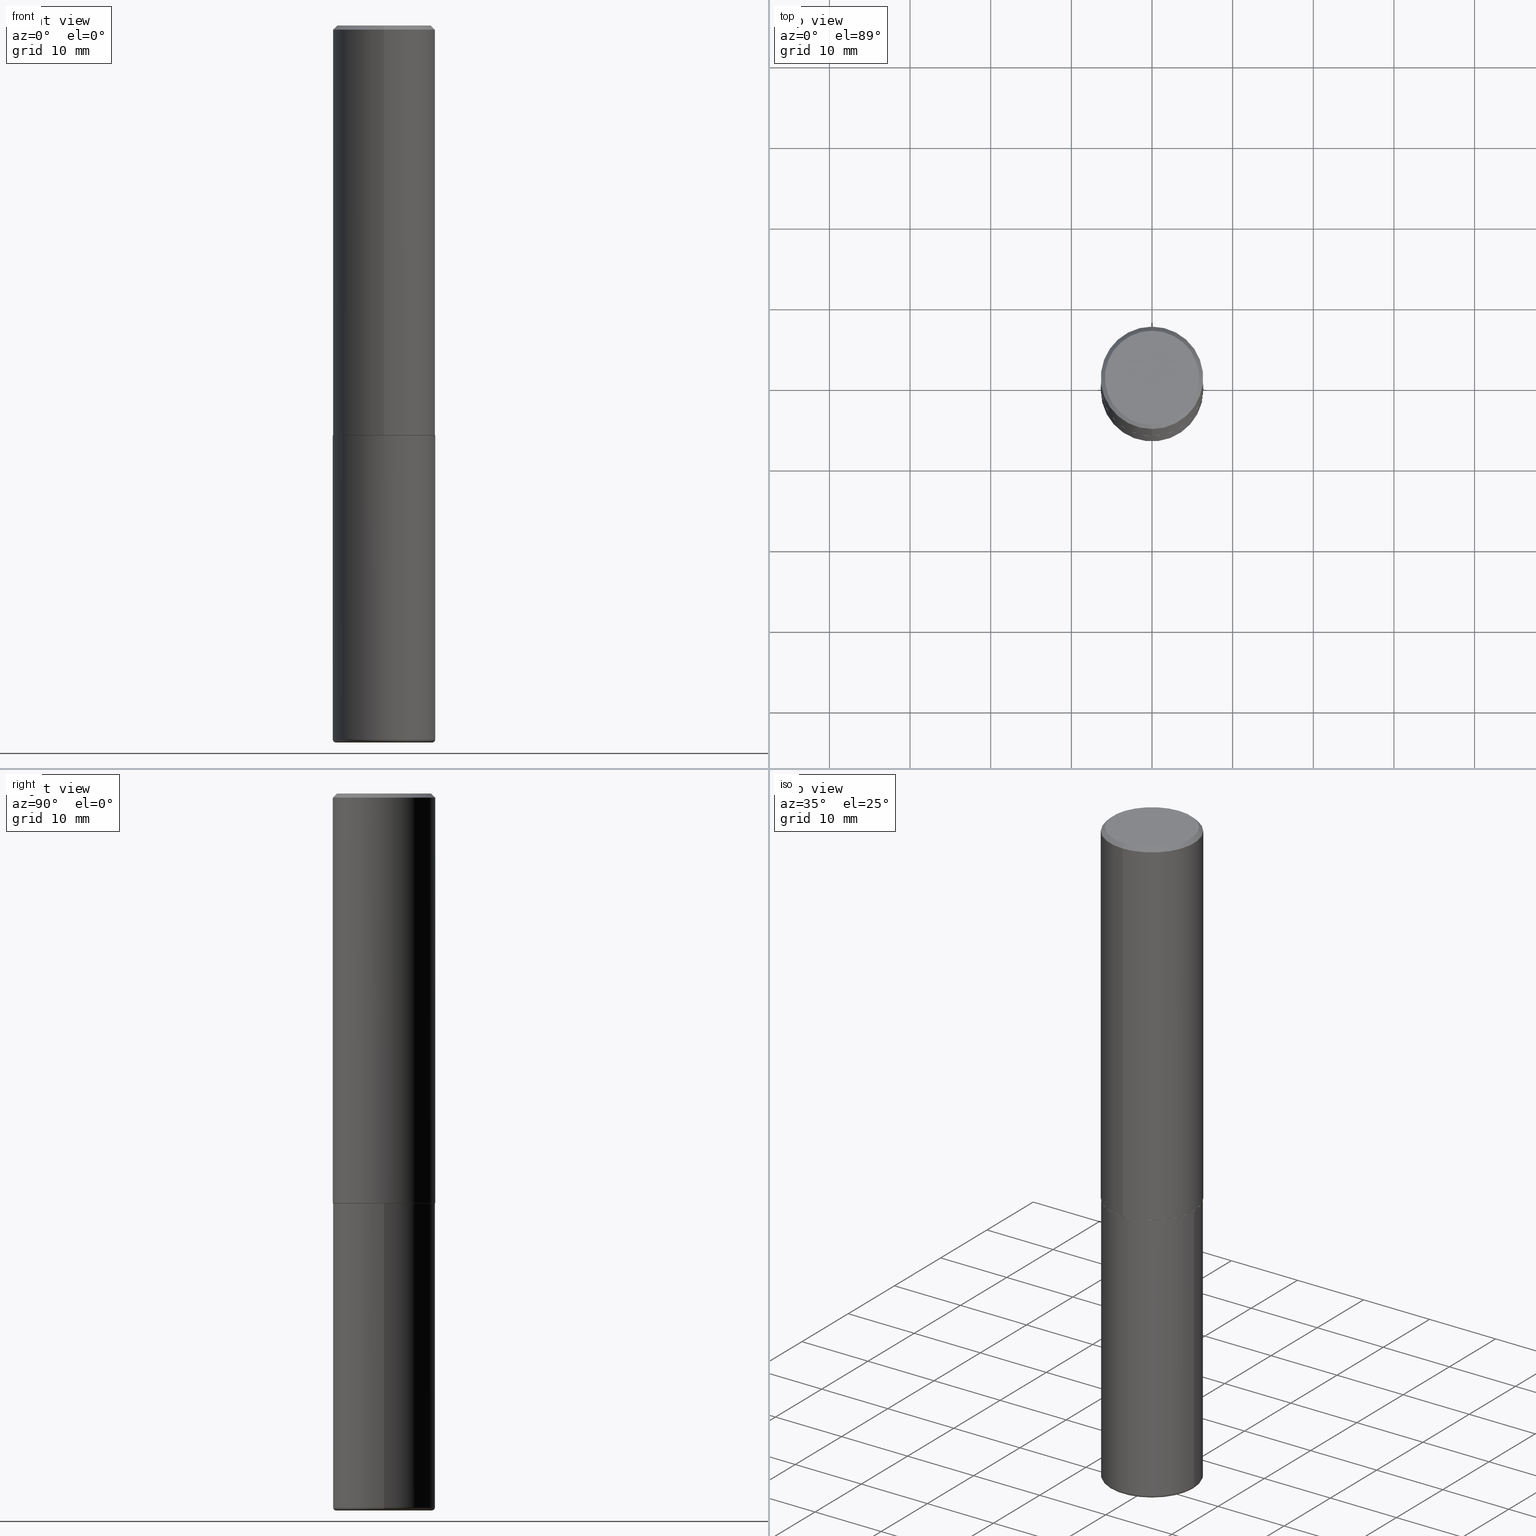
[diagram: canonical four-view strip — front | top / right | iso, engineering-drawing reading convention]
A machine part, canonical four-view strip (front | top / right | iso — engineering-drawing reading convention). The complete STEP part file that produces these views, byte-faithful:
ISO-10303-21;
HEADER;
FILE_DESCRIPTION (( 'STEP AP203' ),
    '1' );
FILE_NAME ('37528.STEP',
    '2024-03-02T03:24:48',
    ( '' ),
    ( '' ),
    'SwSTEP 2.0',
    'SolidWorks 2023',
    '' );
FILE_SCHEMA (( 'CONFIG_CONTROL_DESIGN' ));
ENDSEC;

DATA;
#1 = DIRECTION ( 'NONE',  ( -2.445737183286911680E-29, 3.491097007558327602E-15, 1.000000000000000000 ) ) ;
#2 = VECTOR ( 'NONE', #381, 39.37007874015748143 ) ;
#3 = AXIS2_PLACEMENT_3D ( 'NONE', #136, #205, #173 ) ;
#4 = EDGE_LOOP ( 'NONE', ( #153, #309 ) ) ;
#5 = CARTESIAN_POINT ( 'NONE',  ( 4.891474366573836672E-31, -6.982194015116674235E-17, -0.02000000000000005593 ) ) ;
#6 = DIRECTION ( 'NONE',  ( 2.445737183286911680E-29, -3.491097007558327602E-15, -1.000000000000000000 ) ) ;
#7 = EDGE_CURVE ( 'NONE', #29, #334, #150, .T. ) ;
#8 = EDGE_LOOP ( 'NONE', ( #158, #74 ) ) ;
#9 = DIRECTION ( 'NONE',  ( 7.105427357601001859E-15, 1.000000000000000000, -3.491481338843145583E-15 ) ) ;
#10 = CIRCLE ( 'NONE', #24, 0.2489999999999999991 ) ;
#11 = CYLINDRICAL_SURFACE ( 'NONE', #283, 0.2500000000000001110 ) ;
#12 = DIRECTION ( 'NONE',  ( 1.000000000000000000, -6.982962677686262766E-15, 0.000000000000000000 ) ) ;
#13 = CARTESIAN_POINT ( 'NONE',  ( 8.559140821647976968E-29, -1.222018468595100619E-14, -3.499999999999999112 ) ) ;
#14 = DIRECTION ( 'NONE',  ( -2.445737183286911680E-29, 3.491097007558327602E-15, 1.000000000000000000 ) ) ;
#15 = EDGE_CURVE ( 'NONE', #311, #332, #92, .T. ) ;
#16 = AXIS2_PLACEMENT_3D ( 'NONE', #292, #329, #361 ) ;
#17 = AXIS2_PLACEMENT_3D ( 'NONE', #108, #339, #306 ) ;
#18 = CIRCLE ( 'NONE', #78, 0.2500000000000000000 ) ;
#19 = PRODUCT ( '37528', '37528', '', ( #276 ) ) ;
#20 = CARTESIAN_POINT ( 'NONE',  ( 0.2499999999999999167, -1.391355313528992618E-14, -3.484999999999999432 ) ) ;
#21 = COORDINATED_UNIVERSAL_TIME_OFFSET ( 5, 0, .BEHIND. ) ;
#22 = DIRECTION ( 'NONE',  ( -1.000000000000000000, 6.982962677686265922E-15, -4.876176775795935793E-29 ) ) ;
#23 = VERTEX_POINT ( 'NONE', #216 ) ;
#24 = AXIS2_PLACEMENT_3D ( 'NONE', #267, #14, #75 ) ;
#25 = LOCAL_TIME ( 22, 24, 48.00000000000000000, #21 ) ;
#26 = ORIENTED_EDGE ( 'NONE', *, *, #241, .T. ) ;
#27 = CARTESIAN_POINT ( 'NONE',  ( 0.000000000000000000, 0.000000000000000000, 0.000000000000000000 ) ) ;
#28 = EDGE_CURVE ( 'NONE', #30, #246, #91, .T. ) ;
#29 = VERTEX_POINT ( 'NONE', #172 ) ;
#30 = VERTEX_POINT ( 'NONE', #344 ) ;
#31 = CIRCLE ( 'NONE', #43, 0.2500000000000000000 ) ;
#32 = LOCAL_TIME ( 22, 24, 48.00000000000000000, #60 ) ;
#33 = CARTESIAN_POINT ( 'NONE',  ( -1.745740669421519543E-15, -0.2500000000000072164, -1.998999999999998778 ) ) ;
#34 = APPROVAL_STATUS ( 'not_yet_approved' ) ;
#35 = DIRECTION ( 'NONE',  ( 2.438088387897960049E-29, -3.491481338843145188E-15, -1.000000000000000000 ) ) ;
#36 = DIMENSIONAL_EXPONENTS ( 1.000000000000000000, 0.000000000000000000, 0.000000000000000000, 0.000000000000000000, 0.000000000000000000, 0.000000000000000000, 0.000000000000000000 ) ;
#37 = EDGE_CURVE ( 'NONE', #334, #183, #335, .T. ) ;
#38 = CARTESIAN_POINT ( 'NONE',  ( 4.891474366573822799E-29, -6.982194015116654415E-15, -1.999999999999999778 ) ) ;
#39 = LINE ( 'NONE', #157, #188 ) ;
#40 = DIRECTION ( 'NONE',  ( -2.445468806185136597E-29, 3.491481338843145583E-15, 1.000000000000000000 ) ) ;
#41 = DIRECTION ( 'NONE',  ( -6.982962677686265922E-15, -1.000000000000000000, 3.491097007558327207E-15 ) ) ;
#42 = LINE ( 'NONE', #109, #347 ) ;
#43 = AXIS2_PLACEMENT_3D ( 'NONE', #5, #161, #70 ) ;
#44 = CARTESIAN_POINT ( 'NONE',  ( 1.675911042644703774E-15, 0.2299999999999999822, -8.286517828745257562E-16 ) ) ;
#45 = DIRECTION ( 'NONE',  ( -6.982962677686266711E-15, -1.000000000000000000, 3.491481338843145583E-15 ) ) ;
#46 = EDGE_CURVE ( 'NONE', #330, #311, #371, .T. ) ;
#47 = DIRECTION ( 'NONE',  ( -2.445468806185136597E-29, 3.491481338843145583E-15, 1.000000000000000000 ) ) ;
#48 = LINE ( 'NONE', #242, #410 ) ;
#49 = CC_DESIGN_DATE_AND_TIME_ASSIGNMENT ( #114, #115, ( #101 ) ) ;
#50 = AXIS2_PLACEMENT_3D ( 'NONE', #387, #93, #303 ) ;
#51 =( NAMED_UNIT ( * ) PLANE_ANGLE_UNIT ( ) SI_UNIT ( $, .RADIAN. ) );
#52 = EDGE_CURVE ( 'NONE', #89, #23, #31, .T. ) ;
#53 = DATE_AND_TIME ( #185, #85 ) ;
#54 = ORIENTED_EDGE ( 'NONE', *, *, #28, .F. ) ;
#55 = PERSON_AND_ORGANIZATION ( #355, #299 ) ;
#56 = ORIENTED_EDGE ( 'NONE', *, *, #167, .F. ) ;
#57 = AXIS2_PLACEMENT_3D ( 'NONE', #287, #129, #323 ) ;
#58 = PERSON_AND_ORGANIZATION ( #355, #299 ) ;
#59 = ORIENTED_EDGE ( 'NONE', *, *, #360, .T. ) ;
#60 = COORDINATED_UNIVERSAL_TIME_OFFSET ( 5, 0, .BEHIND. ) ;
#61 = ORIENTED_EDGE ( 'NONE', *, *, #293, .F. ) ;
#62 = CARTESIAN_POINT ( 'NONE',  ( 6.285415214839433991E-46, -8.971934677910720830E-32, -2.569947113611056727E-17 ) ) ;
#63 = AXIS2_PLACEMENT_3D ( 'NONE', #207, #45, #277 ) ;
#64 = AXIS2_PLACEMENT_3D ( 'NONE', #236, #263, #374 ) ;
#65 = CARTESIAN_POINT ( 'NONE',  ( 4.890937612370272633E-29, -6.982962677686290376E-15, -1.999999999999999778 ) ) ;
#66 = EDGE_CURVE ( 'NONE', #165, #29, #341, .T. ) ;
#67 = LINE ( 'NONE', #230, #274 ) ;
#68 = FACE_OUTER_BOUND ( 'NONE', #186, .T. ) ;
#69 = AXIS2_PLACEMENT_3D ( 'NONE', #102, #6, #133 ) ;
#70 = DIRECTION ( 'NONE',  ( -6.982962677686265922E-15, -1.000000000000000000, 3.483106191921935554E-15 ) ) ;
#71 = ORIENTED_EDGE ( 'NONE', *, *, #73, .T. ) ;
#72 = DIRECTION ( 'NONE',  ( -2.445737183286911680E-29, 3.491097007558327602E-15, 1.000000000000000000 ) ) ;
#73 = EDGE_CURVE ( 'NONE', #246, #178, #116, .T. ) ;
#74 = ORIENTED_EDGE ( 'NONE', *, *, #255, .F. ) ;
#75 = DIRECTION ( 'NONE',  ( -6.982962677686265133E-15, -1.000000000000000000, 3.291383124896702687E-15 ) ) ;
#76 = CARTESIAN_POINT ( 'NONE',  ( 0.000000000000000000, 0.000000000000000000, 0.000000000000000000 ) ) ;
#77 = CIRCLE ( 'NONE', #415, 0.2500000000000000000 ) ;
#78 = AXIS2_PLACEMENT_3D ( 'NONE', #296, #337, #400 ) ;
#79 = ORIENTED_EDGE ( 'NONE', *, *, #52, .T. ) ;
#80 = ADVANCED_FACE ( 'NONE', ( #155 ), #141, .T. ) ;
#81 = DIRECTION ( 'NONE',  ( -2.445737183286911680E-29, 3.491097007558327602E-15, 1.000000000000000000 ) ) ;
#82 = CARTESIAN_POINT ( 'NONE',  ( 8.522458789555200771E-29, -1.216781246586836108E-14, -3.484999999999999432 ) ) ;
#83 =( LENGTH_UNIT ( ) NAMED_UNIT ( * ) SI_UNIT ( $, .METRE. ) );
#84 = AXIS2_PLACEMENT_3D ( 'NONE', #223, #227, #353 ) ;
#85 = LOCAL_TIME ( 22, 24, 48.00000000000000000, #409 ) ;
#86 = APPROVAL_STATUS ( 'not_yet_approved' ) ;
#87 = CARTESIAN_POINT ( 'NONE',  ( 1.769251412042698169E-15, 0.2489999999999930325, -2.000000000000000444 ) ) ;
#88 = PERSON_AND_ORGANIZATION ( #355, #299 ) ;
#89 = VERTEX_POINT ( 'NONE', #359 ) ;
#90 =( CONVERSION_BASED_UNIT ( 'INCH', #377 ) LENGTH_UNIT ( ) NAMED_UNIT ( #36 ) );
#91 = LINE ( 'NONE', #414, #298 ) ;
#92 = CIRCLE ( 'NONE', #63, 0.01499999999999987454 ) ;
#93 = DIRECTION ( 'NONE',  ( -2.445737183286911680E-29, 3.491097007558327602E-15, 1.000000000000000000 ) ) ;
#94 = APPROVAL ( #86, 'UNSPECIFIED' ) ;
#95 = DESIGN_CONTEXT ( 'detailed design', #210, 'design' ) ;
#96 = LINE ( 'NONE', #254, #362 ) ;
#97 = DIRECTION ( 'NONE',  ( -6.982962677686265922E-15, -1.000000000000000000, 3.491097007558327207E-15 ) ) ;
#98 = AXIS2_PLACEMENT_3D ( 'NONE', #177, #375, #383 ) ;
#99 = CARTESIAN_POINT ( 'NONE',  ( 8.522458789555200771E-29, -1.216781246586836108E-14, -3.484999999999999432 ) ) ;
#100 = PRODUCT_RELATED_PRODUCT_CATEGORY ( 'detail', '', ( #19 ) ) ;
#101 = PRODUCT_DEFINITION ( 'UNKNOWN', '', #251, #95 ) ;
#102 = CARTESIAN_POINT ( 'NONE',  ( 4.891474366573836672E-31, -6.982194015116674235E-17, -0.02000000000000005593 ) ) ;
#103 = EDGE_CURVE ( 'NONE', #183, #334, #250, .T. ) ;
#104 = PLANE ( 'NONE',  #3 ) ;
#105 = ORIENTED_EDGE ( 'NONE', *, *, #103, .T. ) ;
#106 = DIRECTION ( 'NONE',  ( -2.445468806185136597E-29, 3.491481338843145583E-15, 1.000000000000000000 ) ) ;
#107 = ORIENTED_EDGE ( 'NONE', *, *, #268, .T. ) ;
#108 = CARTESIAN_POINT ( 'NONE',  ( 8.559140821647976968E-29, -1.222018468595100619E-14, -3.499999999999999112 ) ) ;
#109 = CARTESIAN_POINT ( 'NONE',  ( -1.738757706743831162E-15, -0.2490000000000069658, -1.999999999999998890 ) ) ;
#110 = TOROIDAL_SURFACE ( 'NONE', #135, 0.2349999999999999867, 0.01499999999999985720 ) ;
#111 = CONICAL_SURFACE ( 'NONE', #388, 0.2489999999999999991, 0.7853981633975507526 ) ;
#112 = ORIENTED_EDGE ( 'NONE', *, *, #220, .F. ) ;
#113 = FACE_OUTER_BOUND ( 'NONE', #279, .T. ) ;
#114 = DATE_AND_TIME ( #342, #32 ) ;
#115 = DATE_TIME_ROLE ( 'creation_date' ) ;
#116 = CIRCLE ( 'NONE', #238, 0.2500000000000000000 ) ;
#117 = PERSON_AND_ORGANIZATION ( #355, #299 ) ;
#118 = ORIENTED_EDGE ( 'NONE', *, *, #255, .T. ) ;
#119 = APPLICATION_PROTOCOL_DEFINITION ( 'international standard', 'config_control_design', 1994, #184 ) ;
#120 = EDGE_LOOP ( 'NONE', ( #26, #121, #221, #416 ) ) ;
#121 = ORIENTED_EDGE ( 'NONE', *, *, #220, .T. ) ;
#122 = EDGE_LOOP ( 'NONE', ( #412, #252, #370, #170 ) ) ;
#123 = ADVANCED_FACE ( 'NONE', ( #358 ), #168, .T. ) ;
#124 = APPROVAL_DATE_TIME ( #354, #134 ) ;
#125 = DIRECTION ( 'NONE',  ( 1.000000000000000000, -6.982962677686266711E-15, 4.883557194083112901E-29 ) ) ;
#126 = DIRECTION ( 'NONE',  ( -2.445468806185136597E-29, 3.491481338843145583E-15, 1.000000000000000000 ) ) ;
#127 = CLOSED_SHELL ( 'NONE', ( #123, #313, #144, #352, #382, #301, #325, #130 ) ) ;
#128 = CC_DESIGN_APPROVAL ( #94, ( #251 ) ) ;
#129 = DIRECTION ( 'NONE',  ( -2.445737183286911680E-29, 3.491097007558327602E-15, 1.000000000000000000 ) ) ;
#130 = ADVANCED_FACE ( 'NONE', ( #285 ), #258, .F. ) ;
#131 = ORIENTED_EDGE ( 'NONE', *, *, #46, .T. ) ;
#132 = CARTESIAN_POINT ( 'NONE',  ( 8.522458789555200771E-29, -1.216781246586836108E-14, -3.484999999999999432 ) ) ;
#133 = DIRECTION ( 'NONE',  ( 6.982962677686265922E-15, 1.000000000000000000, -3.483106191921935554E-15 ) ) ;
#134 = APPROVAL ( #34, 'UNSPECIFIED' ) ;
#135 = AXIS2_PLACEMENT_3D ( 'NONE', #99, #417, #125 ) ;
#136 = CARTESIAN_POINT ( 'NONE',  ( 4.891474366573822799E-29, -6.982194015116654415E-15, -1.999999999999999778 ) ) ;
#137 = CYLINDRICAL_SURFACE ( 'NONE', #64, 0.2500000000000000000 ) ;
#138 = DIRECTION ( 'NONE',  ( -4.937700262165053702E-15, -0.7071067811866175168, 0.7071067811864775177 ) ) ;
#139 = ORIENTED_EDGE ( 'NONE', *, *, #162, .T. ) ;
#140 = DIRECTION ( 'NONE',  ( -2.445737183286911680E-29, 3.491097007558327602E-15, 1.000000000000000000 ) ) ;
#141 = TOROIDAL_SURFACE ( 'NONE', #181, 0.2349999999999999867, 0.01499999999999985720 ) ;
#142 = AXIS2_PLACEMENT_3D ( 'NONE', #27, #146, #315 ) ;
#143 = CARTESIAN_POINT ( 'NONE',  ( 1.424147052658787775E-28, -4.082765130355326584E-15, -3.499999999999999112 ) ) ;
#144 = ADVANCED_FACE ( 'NONE', ( #68 ), #154, .T. ) ;
#145 = CALENDAR_DATE ( 2024, 1, 3 ) ;
#146 = DIRECTION ( 'NONE',  ( 0.000000000000000000, 0.000000000000000000, 1.000000000000000000 ) ) ;
#147 = VERTEX_POINT ( 'NONE', #389 ) ;
#148 = PERSON_AND_ORGANIZATION ( #355, #299 ) ;
#149 = EDGE_CURVE ( 'NONE', #183, #23, #96, .T. ) ;
#150 = LINE ( 'NONE', #87, #2 ) ;
#151 = PERSON_AND_ORGANIZATION_ROLE ( 'creator' ) ;
#152 = EDGE_LOOP ( 'NONE', ( #378, #118, #260, #237 ) ) ;
#153 = ORIENTED_EDGE ( 'NONE', *, *, #241, .F. ) ;
#154 = CONICAL_SURFACE ( 'NONE', #69, 0.2500000000000000000, 0.7853981633974481680 ) ;
#155 = FACE_OUTER_BOUND ( 'NONE', #367, .T. ) ;
#156 = DIRECTION ( 'NONE',  ( -1.000000000000000000, 6.982962677686265922E-15, -4.876176775795935793E-29 ) ) ;
#157 = CARTESIAN_POINT ( 'NONE',  ( -1.715124499442882299E-15, -0.2500000000000000555, -0.01999999999999918510 ) ) ;
#158 = ORIENTED_EDGE ( 'NONE', *, *, #66, .F. ) ;
#159 = AXIS2_PLACEMENT_3D ( 'NONE', #38, #1, #391 ) ;
#160 =( GEOMETRIC_REPRESENTATION_CONTEXT ( 3 ) GLOBAL_UNCERTAINTY_ASSIGNED_CONTEXT ( ( #191 ) ) GLOBAL_UNIT_ASSIGNED_CONTEXT ( ( #90, #51, #243 ) ) REPRESENTATION_CONTEXT ( 'NONE', 'WORKASPACE' ) );
#161 = DIRECTION ( 'NONE',  ( -2.445737183286911680E-29, 3.491097007558327602E-15, 1.000000000000000000 ) ) ;
#162 = EDGE_CURVE ( 'NONE', #178, #246, #261, .T. ) ;
#163 = ADVANCED_BREP_SHAPE_REPRESENTATION ( '37528', ( #336, #201, #142 ), #160 ) ;
#164 = CARTESIAN_POINT ( 'NONE',  ( 4.890937612370272633E-29, -6.982962677686290376E-15, -1.999999999999999778 ) ) ;
#165 = VERTEX_POINT ( 'NONE', #187 ) ;
#166 = DIRECTION ( 'NONE',  ( 4.937700262164546464E-15, 0.7071067811865447972, -0.7071067811865500152 ) ) ;
#167 = EDGE_CURVE ( 'NONE', #147, #247, #318, .T. ) ;
#168 = CONICAL_SURFACE ( 'NONE', #159, 0.2489999999999999991, 0.7853981633975507526 ) ;
#169 = CARTESIAN_POINT ( 'NONE',  ( 0.2349999999999999867, -1.386118091520728107E-14, -3.499999999999999112 ) ) ;
#170 = ORIENTED_EDGE ( 'NONE', *, *, #211, .F. ) ;
#171 = FACE_OUTER_BOUND ( 'NONE', #240, .T. ) ;
#172 = CARTESIAN_POINT ( 'NONE',  ( 1.772804125721499659E-15, 0.2489999999999930325, -2.000000000000000444 ) ) ;
#173 = DIRECTION ( 'NONE',  ( -6.982962677686265922E-15, -1.000000000000000000, 3.491097007558327602E-15 ) ) ;
#174 = CARTESIAN_POINT ( 'NONE',  ( 0.000000000000000000, 0.000000000000000000, 0.000000000000000000 ) ) ;
#175 = VECTOR ( 'NONE', #166, 39.37007874015748854 ) ;
#176 = ADVANCED_FACE ( 'NONE', ( #256 ), #110, .T. ) ;
#177 = CARTESIAN_POINT ( 'NONE',  ( 0.000000000000000000, 0.000000000000000000, 0.000000000000000000 ) ) ;
#178 = VERTEX_POINT ( 'NONE', #327 ) ;
#179 = EDGE_CURVE ( 'NONE', #332, #178, #67, .T. ) ;
#180 = ORIENTED_EDGE ( 'NONE', *, *, #149, .T. ) ;
#181 = AXIS2_PLACEMENT_3D ( 'NONE', #132, #126, #197 ) ;
#182 = LOCAL_TIME ( 22, 24, 48.00000000000000000, #288 ) ;
#183 = VERTEX_POINT ( 'NONE', #33 ) ;
#184 = APPLICATION_CONTEXT ( 'configuration controlled 3d designs of mechanical parts and assemblies' ) ;
#185 = CALENDAR_DATE ( 2024, 1, 3 ) ;
#186 = EDGE_LOOP ( 'NONE', ( #56, #193, #264, #61 ) ) ;
#187 = CARTESIAN_POINT ( 'NONE',  ( -1.738757706743831162E-15, -0.2490000000000069658, -1.999999999999998890 ) ) ;
#188 = VECTOR ( 'NONE', #366, 39.37007874015748854 ) ;
#189 = CONICAL_SURFACE ( 'NONE', #394, 0.2500000000000000000, 0.7853981633974481680 ) ;
#190 = DIRECTION ( 'NONE',  ( 1.000000000000000000, -6.982962677686271444E-15, 0.000000000000000000 ) ) ;
#191 = UNCERTAINTY_MEASURE_WITH_UNIT (LENGTH_MEASURE( 1.000000000000000082E-05 ), #90, 'distance_accuracy_value', 'NONE');
#192 = DIRECTION ( 'NONE',  ( -2.445468806185136877E-29, 3.491481338843145188E-15, 1.000000000000000000 ) ) ;
#193 = ORIENTED_EDGE ( 'NONE', *, *, #208, .T. ) ;
#194 = DIRECTION ( 'NONE',  ( 1.000000000000000000, -6.982962677686266711E-15, 0.000000000000000000 ) ) ;
#195 = CIRCLE ( 'NONE', #17, 0.2349999999999999867 ) ;
#196 = LOCAL_TIME ( 22, 24, 48.00000000000000000, #351 ) ;
#197 = DIRECTION ( 'NONE',  ( 1.000000000000000000, -6.982962677686266711E-15, 4.883557194083112901E-29 ) ) ;
#198 = FACE_OUTER_BOUND ( 'NONE', #363, .T. ) ;
#199 = EDGE_CURVE ( 'NONE', #23, #89, #376, .T. ) ;
#200 = ADVANCED_FACE ( 'NONE', ( #356 ), #289, .F. ) ;
#201 = MANIFOLD_SOLID_BREP ( 'Body-Move/Copy2[2]', #127 ) ;
#202 = CARTESIAN_POINT ( 'NONE',  ( 4.891474366573822799E-29, -6.982194015116654415E-15, -1.999999999999999778 ) ) ;
#203 = ORIENTED_EDGE ( 'NONE', *, *, #52, .F. ) ;
#204 = AXIS2_PLACEMENT_3D ( 'NONE', #62, #229, #97 ) ;
#205 = DIRECTION ( 'NONE',  ( -2.445737183286911400E-29, 3.491097007558327602E-15, 1.000000000000000000 ) ) ;
#206 = APPROVAL_PERSON_ORGANIZATION ( #385, #225, #312 ) ;
#207 = CARTESIAN_POINT ( 'NONE',  ( 0.2349999999999999867, -1.380880869512463439E-14, -3.484999999999999432 ) ) ;
#208 = EDGE_CURVE ( 'NONE', #147, #23, #39, .T. ) ;
#209 = FACE_OUTER_BOUND ( 'NONE', #152, .T. ) ;
#210 = APPLICATION_CONTEXT ( 'configuration controlled 3d designs of mechanical parts and assemblies' ) ;
#211 = EDGE_CURVE ( 'NONE', #165, #183, #42, .T. ) ;
#212 = CARTESIAN_POINT ( 'NONE',  ( 1.745740669421566875E-15, 0.2499999999999999167, -0.02000000000000092676 ) ) ;
#213 = CC_DESIGN_PERSON_AND_ORGANIZATION_ASSIGNMENT ( #55, #228, ( #407 ) ) ;
#214 = AXIS2_PLACEMENT_3D ( 'NONE', #364, #72, #41 ) ;
#215 = DATE_AND_TIME ( #145, #25 ) ;
#216 = CARTESIAN_POINT ( 'NONE',  ( -1.715124499442882299E-15, -0.2500000000000000555, -0.01999999999999918510 ) ) ;
#217 = PERSON_AND_ORGANIZATION_ROLE ( 'design_supplier' ) ;
#218 = EDGE_LOOP ( 'NONE', ( #139, #71 ) ) ;
#219 = ORIENTED_EDGE ( 'NONE', *, *, #208, .F. ) ;
#220 = EDGE_CURVE ( 'NONE', #330, #30, #386, .T. ) ;
#221 = ORIENTED_EDGE ( 'NONE', *, *, #280, .F. ) ;
#222 = PERSON_AND_ORGANIZATION ( #355, #299 ) ;
#223 = CARTESIAN_POINT ( 'NONE',  ( 4.890937612370272633E-29, -6.982962677686290376E-15, -1.999999999999999778 ) ) ;
#224 = DIRECTION ( 'NONE',  ( -6.982962677686265922E-15, -1.000000000000000000, 3.483106191921935554E-15 ) ) ;
#225 = APPROVAL ( #271, 'UNSPECIFIED' ) ;
#226 = CLOSED_SHELL ( 'NONE', ( #319, #176, #200, #272, #80, #404 ) ) ;
#227 = DIRECTION ( 'NONE',  ( -2.445468806185136597E-29, 3.491481338843145583E-15, 1.000000000000000000 ) ) ;
#228 = PERSON_AND_ORGANIZATION_ROLE ( 'classification_officer' ) ;
#229 = DIRECTION ( 'NONE',  ( -2.445737183286911680E-29, 3.491097007558327602E-15, 1.000000000000000000 ) ) ;
#230 = CARTESIAN_POINT ( 'NONE',  ( 0.2500000000000000000, -1.745740669421566678E-15, 1.219044193948983948E-29 ) ) ;
#231 = CC_DESIGN_APPROVAL ( #225, ( #101 ) ) ;
#232 = DIRECTION ( 'NONE',  ( 2.445737183286911680E-29, -3.491097007558327602E-15, -1.000000000000000000 ) ) ;
#233 = ORIENTED_EDGE ( 'NONE', *, *, #15, .T. ) ;
#234 = DIRECTION ( 'NONE',  ( -2.445737183286911680E-29, 3.491097007558327602E-15, 1.000000000000000000 ) ) ;
#235 = ORIENTED_EDGE ( 'NONE', *, *, #280, .T. ) ;
#236 = CARTESIAN_POINT ( 'NONE',  ( 0.000000000000000000, 0.000000000000000000, 0.000000000000000000 ) ) ;
#237 = ORIENTED_EDGE ( 'NONE', *, *, #37, .F. ) ;
#238 = AXIS2_PLACEMENT_3D ( 'NONE', #164, #322, #194 ) ;
#239 = LINE ( 'NONE', #212, #175 ) ;
#240 = EDGE_LOOP ( 'NONE', ( #281, #257, #180, #203 ) ) ;
#241 = EDGE_CURVE ( 'NONE', #311, #330, #195, .T. ) ;
#242 = CARTESIAN_POINT ( 'NONE',  ( 1.776356839400251254E-15, 0.2500000000000001110, -8.727742518895823935E-16 ) ) ;
#243 =( NAMED_UNIT ( * ) SI_UNIT ( $, .STERADIAN. ) SOLID_ANGLE_UNIT ( ) );
#244 = AXIS2_PLACEMENT_3D ( 'NONE', #143, #248, #22 ) ;
#245 = PLANE ( 'NONE',  #244 ) ;
#246 = VERTEX_POINT ( 'NONE', #304 ) ;
#247 = VERTEX_POINT ( 'NONE', #44 ) ;
#248 = DIRECTION ( 'NONE',  ( 2.438088387897960049E-29, -3.491481338843145188E-15, -1.000000000000000000 ) ) ;
#249 = ORIENTED_EDGE ( 'NONE', *, *, #360, .F. ) ;
#250 = CIRCLE ( 'NONE', #57, 0.2500000000000002776 ) ;
#251 = PRODUCT_DEFINITION_FORMATION_WITH_SPECIFIED_SOURCE ( 'ANY', '', #19, .NOT_KNOWN. ) ;
#252 = ORIENTED_EDGE ( 'NONE', *, *, #7, .T. ) ;
#253 = CARTESIAN_POINT ( 'NONE',  ( 4.891474366573836672E-31, -6.982194015116674235E-17, -0.02000000000000005593 ) ) ;
#254 = CARTESIAN_POINT ( 'NONE',  ( -1.745740669421567467E-15, -0.2500000000000001110, 8.727742518895823935E-16 ) ) ;
#255 = EDGE_CURVE ( 'NONE', #29, #165, #10, .T. ) ;
#256 = FACE_OUTER_BOUND ( 'NONE', #120, .T. ) ;
#257 = ORIENTED_EDGE ( 'NONE', *, *, #37, .T. ) ;
#258 = PLANE ( 'NONE',  #393 ) ;
#259 = CARTESIAN_POINT ( 'NONE',  ( 1.776356839400276103E-15, 0.2499999999999933109, -1.999000000000000554 ) ) ;
#260 = ORIENTED_EDGE ( 'NONE', *, *, #211, .T. ) ;
#261 = CIRCLE ( 'NONE', #84, 0.2500000000000000000 ) ;
#262 = CIRCLE ( 'NONE', #214, 0.2299999999999999822 ) ;
#263 = DIRECTION ( 'NONE',  ( -2.445468806185136597E-29, 3.491481338843145583E-15, 1.000000000000000000 ) ) ;
#264 = ORIENTED_EDGE ( 'NONE', *, *, #199, .T. ) ;
#265 = CC_DESIGN_PERSON_AND_ORGANIZATION_ASSIGNMENT ( #58, #151, ( #101 ) ) ;
#266 = FACE_OUTER_BOUND ( 'NONE', #295, .T. ) ;
#267 = CARTESIAN_POINT ( 'NONE',  ( 4.891474366573822799E-29, -6.982194015116654415E-15, -1.999999999999999778 ) ) ;
#268 = EDGE_CURVE ( 'NONE', #334, #89, #48, .T. ) ;
#269 = ORIENTED_EDGE ( 'NONE', *, *, #380, .F. ) ;
#270 = CARTESIAN_POINT ( 'NONE',  ( -0.2349999999999999867, -1.047093244169144191E-14, -3.499999999999999112 ) ) ;
#271 = APPROVAL_STATUS ( 'not_yet_approved' ) ;
#272 = ADVANCED_FACE ( 'NONE', ( #401 ), #408, .T. ) ;
#273 = APPLICATION_PROTOCOL_DEFINITION ( 'international standard', 'config_control_design', 1994, #210 ) ;
#274 = VECTOR ( 'NONE', #192, 39.37007874015748143 ) ;
#275 = EDGE_LOOP ( 'NONE', ( #59, #324 ) ) ;
#276 = MECHANICAL_CONTEXT ( 'NONE', #184, 'mechanical' ) ;
#277 = DIRECTION ( 'NONE',  ( 1.000000000000000000, -6.982962677686196502E-15, 0.000000000000000000 ) ) ;
#278 = APPROVAL_ROLE ( '' ) ;
#279 = EDGE_LOOP ( 'NONE', ( #235, #350, #346, #338 ) ) ;
#280 = EDGE_CURVE ( 'NONE', #332, #30, #77, .T. ) ;
#281 = ORIENTED_EDGE ( 'NONE', *, *, #268, .F. ) ;
#282 = AXIS2_PLACEMENT_3D ( 'NONE', #65, #35, #156 ) ;
#283 = AXIS2_PLACEMENT_3D ( 'NONE', #174, #234, #333 ) ;
#284 = DATE_AND_TIME ( #326, #196 ) ;
#285 = FACE_OUTER_BOUND ( 'NONE', #275, .T. ) ;
#286 = PRODUCT_DEFINITION_SHAPE ( 'NONE', 'NONE',  #101 ) ;
#287 = CARTESIAN_POINT ( 'NONE',  ( 4.889028629390535480E-29, -6.978702918109095527E-15, -1.998999999999999666 ) ) ;
#288 = COORDINATED_UNIVERSAL_TIME_OFFSET ( 5, 0, .BEHIND. ) ;
#289 = PLANE ( 'NONE',  #282 ) ;
#290 = APPROVAL_PERSON_ORGANIZATION ( #222, #134, #357 ) ;
#291 = SHAPE_DEFINITION_REPRESENTATION ( #286, #163 ) ;
#292 = CARTESIAN_POINT ( 'NONE',  ( 4.891474366573822799E-29, -6.982194015116654415E-15, -1.999999999999999778 ) ) ;
#293 = EDGE_CURVE ( 'NONE', #247, #89, #239, .T. ) ;
#294 = DIRECTION ( 'NONE',  ( 2.445737183286911400E-29, -3.491097007558327602E-15, -1.000000000000000000 ) ) ;
#295 = EDGE_LOOP ( 'NONE', ( #219, #249, #365, #79 ) ) ;
#296 = CARTESIAN_POINT ( 'NONE',  ( 8.522458789555200771E-29, -1.216781246586836108E-14, -3.484999999999999432 ) ) ;
#297 = CC_DESIGN_PERSON_AND_ORGANIZATION_ASSIGNMENT ( #148, #307, ( #19 ) ) ;
#298 = VECTOR ( 'NONE', #348, 39.37007874015748143 ) ;
#299 = ORGANIZATION ( 'UNSPECIFIED', 'UNSPECIFIED', '' ) ;
#300 = DIRECTION ( 'NONE',  ( 1.000000000000000000, -6.982962677686266711E-15, 4.876176775795935793E-29 ) ) ;
#301 = ADVANCED_FACE ( 'NONE', ( #209 ), #111, .T. ) ;
#302 = DIRECTION ( 'NONE',  ( -1.000000000000000000, 7.105427357601050768E-15, 0.000000000000000000 ) ) ;
#303 = DIRECTION ( 'NONE',  ( -6.982962677686265922E-15, -1.000000000000000000, 3.278217592397112312E-15 ) ) ;
#304 = CARTESIAN_POINT ( 'NONE',  ( -0.2500000000000000000, -7.799030732377074474E-15, -1.999999999999999778 ) ) ;
#305 = AXIS2_PLACEMENT_3D ( 'NONE', #253, #390, #224 ) ;
#306 = DIRECTION ( 'NONE',  ( 1.000000000000000000, -6.982962677686271444E-15, 0.000000000000000000 ) ) ;
#307 = PERSON_AND_ORGANIZATION_ROLE ( 'design_owner' ) ;
#308 = FACE_OUTER_BOUND ( 'NONE', #4, .T. ) ;
#309 = ORIENTED_EDGE ( 'NONE', *, *, #46, .F. ) ;
#310 = AXIS2_PLACEMENT_3D ( 'NONE', #76, #106, #300 ) ;
#311 = VERTEX_POINT ( 'NONE', #169 ) ;
#312 = APPROVAL_ROLE ( '' ) ;
#313 = ADVANCED_FACE ( 'NONE', ( #198 ), #11, .T. ) ;
#314 = ORIENTED_EDGE ( 'NONE', *, *, #199, .F. ) ;
#315 = DIRECTION ( 'NONE',  ( 1.000000000000000000, 0.000000000000000000, 0.000000000000000000 ) ) ;
#316 = ORIENTED_EDGE ( 'NONE', *, *, #380, .T. ) ;
#317 = DIRECTION ( 'NONE',  ( -2.445737183286911680E-29, 3.491097007558327602E-15, 1.000000000000000000 ) ) ;
#318 = CIRCLE ( 'NONE', #204, 0.2299999999999999822 ) ;
#319 = ADVANCED_FACE ( 'NONE', ( #113 ), #137, .T. ) ;
#320 = CC_DESIGN_APPROVAL ( #134, ( #407 ) ) ;
#321 = DATE_TIME_ROLE ( 'classification_date' ) ;
#322 = DIRECTION ( 'NONE',  ( -2.445468806185136597E-29, 3.491481338843145583E-15, 1.000000000000000000 ) ) ;
#323 = DIRECTION ( 'NONE',  ( -6.982962677686265922E-15, -1.000000000000000000, 3.278217592397112312E-15 ) ) ;
#324 = ORIENTED_EDGE ( 'NONE', *, *, #167, .T. ) ;
#325 = ADVANCED_FACE ( 'NONE', ( #397 ), #104, .F. ) ;
#326 = CALENDAR_DATE ( 2024, 1, 3 ) ;
#327 = CARTESIAN_POINT ( 'NONE',  ( 0.2500000000000000000, -8.728703347107857054E-15, -1.999999999999999778 ) ) ;
#328 = AXIS2_PLACEMENT_3D ( 'NONE', #13, #40, #190 ) ;
#329 = DIRECTION ( 'NONE',  ( -2.445737183286911680E-29, 3.491097007558327602E-15, 1.000000000000000000 ) ) ;
#330 = VERTEX_POINT ( 'NONE', #270 ) ;
#331 = DIRECTION ( 'NONE',  ( -6.982962677686265133E-15, -1.000000000000000000, 3.291383124896702687E-15 ) ) ;
#332 = VERTEX_POINT ( 'NONE', #20 ) ;
#333 = DIRECTION ( 'NONE',  ( -6.982962677686266711E-15, -1.000000000000000000, 3.491097007558327996E-15 ) ) ;
#334 = VERTEX_POINT ( 'NONE', #259 ) ;
#335 = CIRCLE ( 'NONE', #50, 0.2500000000000002776 ) ;
#336 = MANIFOLD_SOLID_BREP ( 'Body-Move/Copy2[1]', #226 ) ;
#337 = DIRECTION ( 'NONE',  ( -2.445468806185136597E-29, 3.491481338843145583E-15, 1.000000000000000000 ) ) ;
#338 = ORIENTED_EDGE ( 'NONE', *, *, #179, .F. ) ;
#339 = DIRECTION ( 'NONE',  ( -2.445468806185136597E-29, 3.491481338843145583E-15, 1.000000000000000000 ) ) ;
#340 = CARTESIAN_POINT ( 'NONE',  ( -0.2349999999999999867, -1.049803703683212495E-14, -3.484999999999999432 ) ) ;
#341 = CIRCLE ( 'NONE', #16, 0.2489999999999999991 ) ;
#342 = CALENDAR_DATE ( 2024, 1, 3 ) ;
#343 = APPROVAL_DATE_TIME ( #215, #94 ) ;
#344 = CARTESIAN_POINT ( 'NONE',  ( -0.2499999999999999167, -1.039145562646811219E-14, -3.484999999999999432 ) ) ;
#345 = SECURITY_CLASSIFICATION_LEVEL ( 'unclassified' ) ;
#346 = ORIENTED_EDGE ( 'NONE', *, *, #162, .F. ) ;
#347 = VECTOR ( 'NONE', #138, 39.37007874015748143 ) ;
#348 = DIRECTION ( 'NONE',  ( -2.445468806185136877E-29, 3.491481338843145188E-15, 1.000000000000000000 ) ) ;
#349 = APPROVAL_DATE_TIME ( #53, #225 ) ;
#350 = ORIENTED_EDGE ( 'NONE', *, *, #28, .T. ) ;
#351 = COORDINATED_UNIVERSAL_TIME_OFFSET ( 5, 0, .BEHIND. ) ;
#352 = ADVANCED_FACE ( 'NONE', ( #266 ), #189, .T. ) ;
#353 = DIRECTION ( 'NONE',  ( 1.000000000000000000, -6.982962677686266711E-15, 0.000000000000000000 ) ) ;
#354 = DATE_AND_TIME ( #395, #182 ) ;
#355 = PERSON ( 'UNSPECIFIED', 'UNSPECIFIED', 'UNSPECIFIED', ('UNSPECIFIED'), ('UNSPECIFIED'), ('UNSPECIFIED') ) ;
#356 = FACE_OUTER_BOUND ( 'NONE', #218, .T. ) ;
#357 = APPROVAL_ROLE ( '' ) ;
#358 = FACE_OUTER_BOUND ( 'NONE', #122, .T. ) ;
#359 = CARTESIAN_POINT ( 'NONE',  ( 1.745740669421566875E-15, 0.2499999999999999167, -0.02000000000000092676 ) ) ;
#360 = EDGE_CURVE ( 'NONE', #247, #147, #262, .T. ) ;
#361 = DIRECTION ( 'NONE',  ( -6.982962677686265133E-15, -1.000000000000000000, 3.291383124896702687E-15 ) ) ;
#362 = VECTOR ( 'NONE', #317, 39.37007874015748143 ) ;
#363 = EDGE_LOOP ( 'NONE', ( #105, #107, #314, #384 ) ) ;
#364 = CARTESIAN_POINT ( 'NONE',  ( 6.285415214839433991E-46, -8.971934677910720830E-32, -2.569947113611056727E-17 ) ) ;
#365 = ORIENTED_EDGE ( 'NONE', *, *, #293, .T. ) ;
#366 = DIRECTION ( 'NONE',  ( -4.851104656540962697E-15, -0.7071067811865497932, -0.7071067811865451302 ) ) ;
#367 = EDGE_LOOP ( 'NONE', ( #112, #131, #233, #269 ) ) ;
#368 = DIRECTION ( 'NONE',  ( 6.982962677686265922E-15, 1.000000000000000000, -3.483106191921935554E-15 ) ) ;
#369 = CC_DESIGN_DATE_AND_TIME_ASSIGNMENT ( #284, #321, ( #407 ) ) ;
#370 = ORIENTED_EDGE ( 'NONE', *, *, #103, .F. ) ;
#371 = CIRCLE ( 'NONE', #328, 0.2349999999999999867 ) ;
#372 = APPROVAL_PERSON_ORGANIZATION ( #413, #94, #278 ) ;
#373 = CYLINDRICAL_SURFACE ( 'NONE', #98, 0.2500000000000001110 ) ;
#374 = DIRECTION ( 'NONE',  ( 1.000000000000000000, -6.982962677686266711E-15, 4.876176775795935793E-29 ) ) ;
#375 = DIRECTION ( 'NONE',  ( -2.445737183286911680E-29, 3.491097007558327602E-15, 1.000000000000000000 ) ) ;
#376 = CIRCLE ( 'NONE', #305, 0.2500000000000000000 ) ;
#377 = LENGTH_MEASURE_WITH_UNIT ( LENGTH_MEASURE( 0.02539999999999999897 ), #83 );
#378 = ORIENTED_EDGE ( 'NONE', *, *, #7, .F. ) ;
#379 = PERSON_AND_ORGANIZATION_ROLE ( 'creator' ) ;
#380 = EDGE_CURVE ( 'NONE', #30, #332, #18, .T. ) ;
#381 = DIRECTION ( 'NONE',  ( 5.024295867788576727E-15, 0.7071067811866224018, 0.7071067811864726327 ) ) ;
#382 = ADVANCED_FACE ( 'NONE', ( #171 ), #373, .T. ) ;
#383 = DIRECTION ( 'NONE',  ( -6.982962677686266711E-15, -1.000000000000000000, 3.491097007558327996E-15 ) ) ;
#384 = ORIENTED_EDGE ( 'NONE', *, *, #149, .F. ) ;
#385 = PERSON_AND_ORGANIZATION ( #355, #299 ) ;
#386 = CIRCLE ( 'NONE', #406, 0.01499999999999987454 ) ;
#387 = CARTESIAN_POINT ( 'NONE',  ( 4.889028629390535480E-29, -6.978702918109095527E-15, -1.998999999999999666 ) ) ;
#388 = AXIS2_PLACEMENT_3D ( 'NONE', #202, #140, #331 ) ;
#389 = CARTESIAN_POINT ( 'NONE',  ( -1.646519519465166968E-15, -0.2299999999999999822, 7.772528406023046093E-16 ) ) ;
#390 = DIRECTION ( 'NONE',  ( -2.445737183286911680E-29, 3.491097007558327602E-15, 1.000000000000000000 ) ) ;
#391 = DIRECTION ( 'NONE',  ( -6.982962677686265133E-15, -1.000000000000000000, 3.291383124896702687E-15 ) ) ;
#392 = CC_DESIGN_PERSON_AND_ORGANIZATION_ASSIGNMENT ( #117, #379, ( #251 ) ) ;
#393 = AXIS2_PLACEMENT_3D ( 'NONE', #396, #294, #418 ) ;
#394 = AXIS2_PLACEMENT_3D ( 'NONE', #403, #232, #368 ) ;
#395 = CALENDAR_DATE ( 2024, 1, 3 ) ;
#396 = CARTESIAN_POINT ( 'NONE',  ( 1.606081415867841067E-15, 0.2299999999999999822, -8.158020473064706174E-16 ) ) ;
#397 = FACE_OUTER_BOUND ( 'NONE', #8, .T. ) ;
#398 = CC_DESIGN_SECURITY_CLASSIFICATION ( #407, ( #251 ) ) ;
#399 = ORIENTED_EDGE ( 'NONE', *, *, #179, .T. ) ;
#400 = DIRECTION ( 'NONE',  ( 1.000000000000000000, -6.982962677686262766E-15, 0.000000000000000000 ) ) ;
#401 = FACE_OUTER_BOUND ( 'NONE', #411, .T. ) ;
#402 = CC_DESIGN_PERSON_AND_ORGANIZATION_ASSIGNMENT ( #88, #217, ( #251 ) ) ;
#403 = CARTESIAN_POINT ( 'NONE',  ( 4.891474366573836672E-31, -6.982194015116674235E-17, -0.02000000000000005593 ) ) ;
#404 = ADVANCED_FACE ( 'NONE', ( #308 ), #245, .T. ) ;
#405 = ORIENTED_EDGE ( 'NONE', *, *, #73, .F. ) ;
#406 = AXIS2_PLACEMENT_3D ( 'NONE', #340, #9, #302 ) ;
#407 = SECURITY_CLASSIFICATION ( '', '', #345 ) ;
#408 = CYLINDRICAL_SURFACE ( 'NONE', #310, 0.2500000000000000000 ) ;
#409 = COORDINATED_UNIVERSAL_TIME_OFFSET ( 5, 0, .BEHIND. ) ;
#410 = VECTOR ( 'NONE', #81, 39.37007874015748143 ) ;
#411 = EDGE_LOOP ( 'NONE', ( #54, #316, #399, #405 ) ) ;
#412 = ORIENTED_EDGE ( 'NONE', *, *, #66, .T. ) ;
#413 = PERSON_AND_ORGANIZATION ( #355, #299 ) ;
#414 = CARTESIAN_POINT ( 'NONE',  ( -0.2500000000000000000, 1.776356839400250465E-15, -1.229733772563726445E-29 ) ) ;
#415 = AXIS2_PLACEMENT_3D ( 'NONE', #82, #47, #12 ) ;
#416 = ORIENTED_EDGE ( 'NONE', *, *, #15, .F. ) ;
#417 = DIRECTION ( 'NONE',  ( -2.445468806185136597E-29, 3.491481338843145583E-15, 1.000000000000000000 ) ) ;
#418 = DIRECTION ( 'NONE',  ( 6.982962677686265922E-15, 1.000000000000000000, -3.491097007558327602E-15 ) ) ;
ENDSEC;
END-ISO-10303-21;
